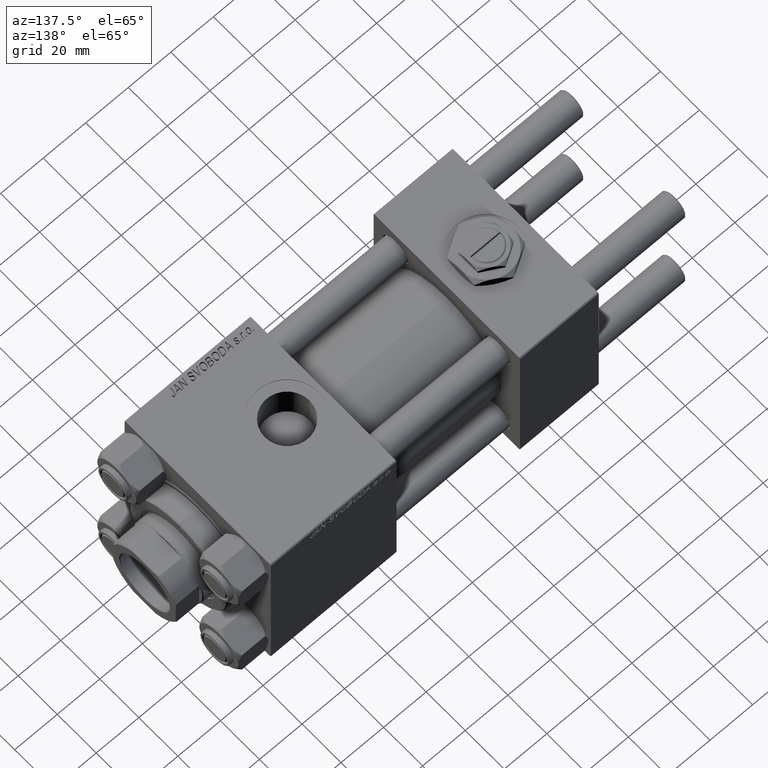
[diagram: clean part render]
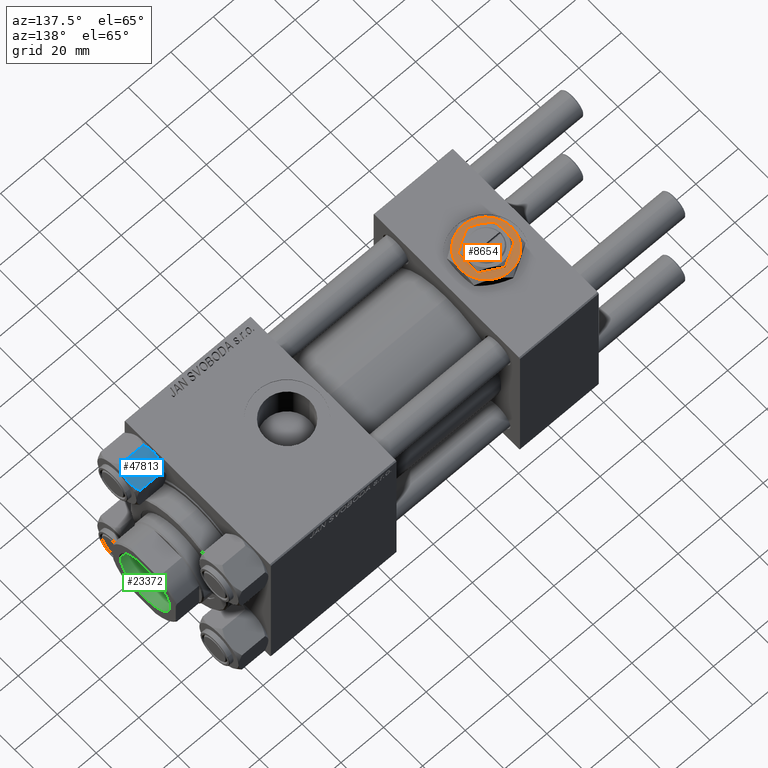
[diagram: same view with three faces highlighted in distinct colors, each labeled with its STEP entity id]
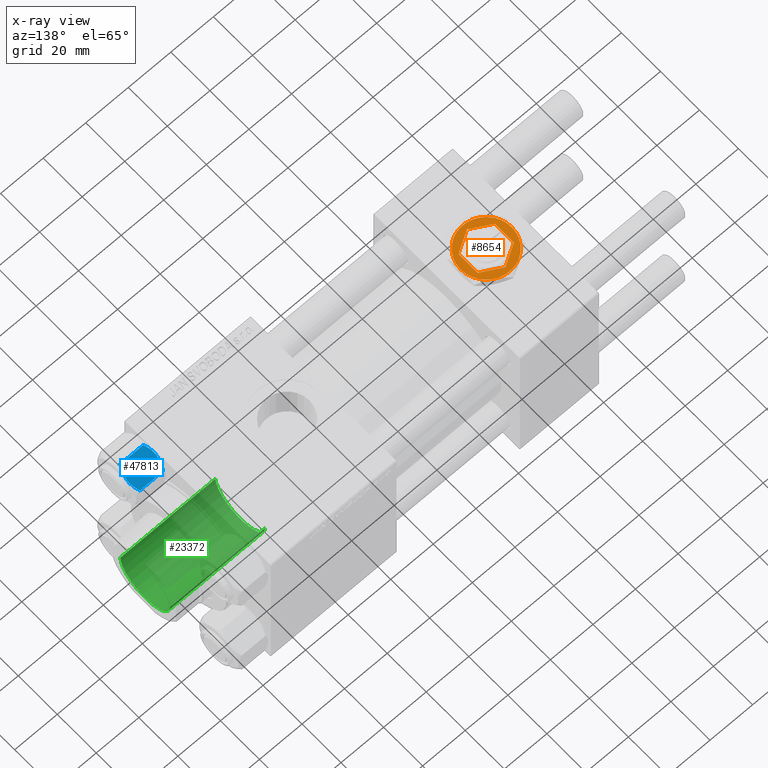
[diagram: x-ray of the same camera — body ghosted, the three highlighted faces saturated]
A machine part, auxiliary view with three faces highlighted in distinct colors.
The next image is the same camera in x-ray (body ghosted, the three faces saturated) — at least one of them is partly hidden behind the body in this view.
Their STEP definitions:

[orange] entity #8654 — the highlighted planar face has unit normal (0, 0, 1).
#578 = AXIS2_PLACEMENT_3D ( 'NONE', #30962, #7125, #14203 ) ;
#1507 = CARTESIAN_POINT ( 'NONE',  ( 0.000000000000000000, 0.000000000000000000, 4.299999999999999822 ) ) ;
#1743 = CARTESIAN_POINT ( 'NONE',  ( -2.644623992720612091E-15, -9.814954576223637872, 4.299999999999999822 ) ) ;
#1765 = DIRECTION ( 'NONE',  ( 1.000000000000000000, 0.000000000000000000, 0.000000000000000000 ) ) ;
#2331 = ORIENTED_EDGE ( 'NONE', *, *, #11339, .T. ) ;
#2369 = CARTESIAN_POINT ( 'NONE',  ( 8.499999999999996447, 4.907477288111821601, 4.299999999999999822 ) ) ;
#2487 = EDGE_CURVE ( 'NONE', #23795, #38289, #14748, .T. ) ;
#2777 = CARTESIAN_POINT ( 'NONE',  ( 0.000000000000000000, 0.000000000000000000, 4.299999999999999822 ) ) ;
#2883 = LINE ( 'NONE', #19116, #24716 ) ;
#3027 = FACE_BOUND ( 'NONE', #23070, .T. ) ;
#3139 = DIRECTION ( 'NONE',  ( 0.000000000000000000, 0.000000000000000000, 1.000000000000000000 ) ) ;
#3194 = CARTESIAN_POINT ( 'NONE',  ( 6.000000000000000888, 10.39230484541326582, 4.299999999999999822 ) ) ;
#4140 = EDGE_CURVE ( 'NONE', #27456, #24628, #9774, .T. ) ;
#4170 = ORIENTED_EDGE ( 'NONE', *, *, #38021, .F. ) ;
#5489 = CARTESIAN_POINT ( 'NONE',  ( 0.000000000000000000, 0.000000000000000000, 4.299999999999999822 ) ) ;
#5886 = CARTESIAN_POINT ( 'NONE',  ( -6.000000000000000000, -10.39230484541326582, 4.299999999999999822 ) ) ;
#5953 = DIRECTION ( 'NONE',  ( 0.000000000000000000, 0.000000000000000000, 1.000000000000000000 ) ) ;
#6041 = LINE ( 'NONE', #2369, #35227 ) ;
#6577 = ORIENTED_EDGE ( 'NONE', *, *, #7555, .T. ) ;
#6869 = CARTESIAN_POINT ( 'NONE',  ( -8.500000000000000000, 4.907477288111818048, 4.299999999999999822 ) ) ;
#7069 = CARTESIAN_POINT ( 'NONE',  ( 0.000000000000000000, 0.000000000000000000, 4.299999999999999822 ) ) ;
#7125 = DIRECTION ( 'NONE',  ( 0.000000000000000000, 0.000000000000000000, 1.000000000000000000 ) ) ;
#7167 = VECTOR ( 'NONE', #30768, 1000.000000000000000 ) ;
#7555 = EDGE_CURVE ( 'NONE', #38289, #17380, #18272, .T. ) ;
#8641 = VERTEX_POINT ( 'NONE', #17788 ) ;
#8654 = ADVANCED_FACE ( 'NONE', ( #50425, #3027 ), #31566, .T. ) ;
#9774 = CIRCLE ( 'NONE', #578, 12.00000000000000178 ) ;
#10568 = AXIS2_PLACEMENT_3D ( 'NONE', #5489, #49214, #24899 ) ;
#10683 = EDGE_CURVE ( 'NONE', #16304, #18826, #37400, .T. ) ;
#11122 = DIRECTION ( 'NONE',  ( -0.8660254037844385966, -0.5000000000000000000, 0.000000000000000000 ) ) ;
#11173 = DIRECTION ( 'NONE',  ( 1.000000000000000000, 0.000000000000000000, 0.000000000000000000 ) ) ;
#11339 = EDGE_CURVE ( 'NONE', #24628, #20233, #18384, .T. ) ;
#12543 = AXIS2_PLACEMENT_3D ( 'NONE', #7069, #3139, #19115 ) ;
#14203 = DIRECTION ( 'NONE',  ( 1.000000000000000000, 0.000000000000000000, 0.000000000000000000 ) ) ;
#14748 = CIRCLE ( 'NONE', #28970, 12.00000000000000178 ) ;
#15277 = ORIENTED_EDGE ( 'NONE', *, *, #39639, .T. ) ;
#16279 = ORIENTED_EDGE ( 'NONE', *, *, #19039, .F. ) ;
#16304 = VERTEX_POINT ( 'NONE', #33083 ) ;
#16826 = ORIENTED_EDGE ( 'NONE', *, *, #44126, .T. ) ;
#17380 = VERTEX_POINT ( 'NONE', #20676 ) ;
#17788 = CARTESIAN_POINT ( 'NONE',  ( 8.499999999999996447, 4.907477288111821601, 4.299999999999999822 ) ) ;
#17986 = EDGE_LOOP ( 'NONE', ( #16826, #20899, #6577, #15277, #32553, #2331 ) ) ;
#18272 = CIRCLE ( 'NONE', #47516, 12.00000000000000178 ) ;
#18274 = CIRCLE ( 'NONE', #39173, 12.00000000000000178 ) ;
#18384 = CIRCLE ( 'NONE', #12543, 12.00000000000000178 ) ;
#18826 = VERTEX_POINT ( 'NONE', #1743 ) ;
#19039 = EDGE_CURVE ( 'NONE', #18826, #30346, #48030, .T. ) ;
#19115 = DIRECTION ( 'NONE',  ( 1.000000000000000000, 0.000000000000000000, 0.000000000000000000 ) ) ;
#19116 = CARTESIAN_POINT ( 'NONE',  ( 8.500000000000000000, -4.907477288111819824, 4.299999999999999822 ) ) ;
#19499 = CARTESIAN_POINT ( 'NONE',  ( 0.000000000000000000, 9.814954576223637872, 4.299999999999999822 ) ) ;
#20233 = VERTEX_POINT ( 'NONE', #33063 ) ;
#20410 = ORIENTED_EDGE ( 'NONE', *, *, #10683, .F. ) ;
#20676 = CARTESIAN_POINT ( 'NONE',  ( -6.000000000000001776, 10.39230484541326405, 4.299999999999999822 ) ) ;
#20899 = ORIENTED_EDGE ( 'NONE', *, *, #2487, .T. ) ;
#21437 = CARTESIAN_POINT ( 'NONE',  ( -8.500000000000000000, -4.907477288111819824, 4.299999999999999822 ) ) ;
#22663 = LINE ( 'NONE', #23177, #7167 ) ;
#23070 = EDGE_LOOP ( 'NONE', ( #50350, #51126, #29437, #16279, #20410, #4170 ) ) ;
#23177 = CARTESIAN_POINT ( 'NONE',  ( -8.500000000000000000, 4.907477288111818048, 4.299999999999999822 ) ) ;
#23795 = VERTEX_POINT ( 'NONE', #51395 ) ;
#24628 = VERTEX_POINT ( 'NONE', #5886 ) ;
#24716 = VECTOR ( 'NONE', #39028, 1000.000000000000000 ) ;
#24899 = DIRECTION ( 'NONE',  ( 1.000000000000000000, 0.000000000000000000, 0.000000000000000000 ) ) ;
#25105 = DIRECTION ( 'NONE',  ( 0.8660254037844385966, -0.5000000000000001110, 0.000000000000000000 ) ) ;
#25825 = AXIS2_PLACEMENT_3D ( 'NONE', #2777, #39174, #27129 ) ;
#25835 = CARTESIAN_POINT ( 'NONE',  ( 0.000000000000000000, 0.000000000000000000, 4.299999999999999822 ) ) ;
#25967 = VECTOR ( 'NONE', #11122, 1000.000000000000227 ) ;
#26095 = DIRECTION ( 'NONE',  ( 0.000000000000000000, 0.000000000000000000, 1.000000000000000000 ) ) ;
#27129 = DIRECTION ( 'NONE',  ( 1.000000000000000000, 0.000000000000000000, -0.000000000000000000 ) ) ;
#27456 = VERTEX_POINT ( 'NONE', #49149 ) ;
#28417 = DIRECTION ( 'NONE',  ( 0.8660254037844388186, 0.4999999999999997224, 0.000000000000000000 ) ) ;
#28507 = CARTESIAN_POINT ( 'NONE',  ( 0.000000000000000000, 9.814954576223637872, 4.299999999999999822 ) ) ;
#28970 = AXIS2_PLACEMENT_3D ( 'NONE', #43116, #31082, #11173 ) ;
#29437 = ORIENTED_EDGE ( 'NONE', *, *, #32785, .F. ) ;
#30346 = VERTEX_POINT ( 'NONE', #37362 ) ;
#30768 = DIRECTION ( 'NONE',  ( 0.000000000000000000, -1.000000000000000000, 0.000000000000000000 ) ) ;
#30962 = CARTESIAN_POINT ( 'NONE',  ( 0.000000000000000000, 0.000000000000000000, 4.299999999999999822 ) ) ;
#31082 = DIRECTION ( 'NONE',  ( 0.000000000000000000, 0.000000000000000000, 1.000000000000000000 ) ) ;
#31566 = PLANE ( 'NONE',  #25825 ) ;
#32553 = ORIENTED_EDGE ( 'NONE', *, *, #4140, .T. ) ;
#32785 = EDGE_CURVE ( 'NONE', #30346, #8641, #2883, .T. ) ;
#33063 = CARTESIAN_POINT ( 'NONE',  ( 5.999999999999998224, -10.39230484541326760, 4.299999999999999822 ) ) ;
#33083 = CARTESIAN_POINT ( 'NONE',  ( -8.500000000000000000, -4.907477288111819824, 4.299999999999999822 ) ) ;
#33433 = DIRECTION ( 'NONE',  ( 1.000000000000000000, 0.000000000000000000, 0.000000000000000000 ) ) ;
#34326 = DIRECTION ( 'NONE',  ( -0.8660254037844387076, 0.4999999999999998890, 0.000000000000000000 ) ) ;
#35227 = VECTOR ( 'NONE', #34326, 1000.000000000000114 ) ;
#36045 = VECTOR ( 'NONE', #28417, 1000.000000000000114 ) ;
#36512 = CIRCLE ( 'NONE', #10568, 12.00000000000000178 ) ;
#36770 = VECTOR ( 'NONE', #25105, 1000.000000000000114 ) ;
#37362 = CARTESIAN_POINT ( 'NONE',  ( 8.500000000000000000, -4.907477288111819824, 4.299999999999999822 ) ) ;
#37400 = LINE ( 'NONE', #21437, #36770 ) ;
#38021 = EDGE_CURVE ( 'NONE', #49524, #16304, #22663, .T. ) ;
#38289 = VERTEX_POINT ( 'NONE', #3194 ) ;
#38638 = LINE ( 'NONE', #19499, #25967 ) ;
#39028 = DIRECTION ( 'NONE',  ( -3.534857879381550604E-16, 1.000000000000000000, 0.000000000000000000 ) ) ;
#39173 = AXIS2_PLACEMENT_3D ( 'NONE', #1507, #5953, #1765 ) ;
#39174 = DIRECTION ( 'NONE',  ( 0.000000000000000000, 0.000000000000000000, 1.000000000000000000 ) ) ;
#39639 = EDGE_CURVE ( 'NONE', #17380, #27456, #36512, .T. ) ;
#40408 = VERTEX_POINT ( 'NONE', #28507 ) ;
#43116 = CARTESIAN_POINT ( 'NONE',  ( 0.000000000000000000, 0.000000000000000000, 4.299999999999999822 ) ) ;
#44126 = EDGE_CURVE ( 'NONE', #20233, #23795, #18274, .T. ) ;
#47516 = AXIS2_PLACEMENT_3D ( 'NONE', #25835, #26095, #33433 ) ;
#48030 = LINE ( 'NONE', #48813, #36045 ) ;
#48813 = CARTESIAN_POINT ( 'NONE',  ( -2.644623992720612091E-15, -9.814954576223637872, 4.299999999999999822 ) ) ;
#49149 = CARTESIAN_POINT ( 'NONE',  ( -12.00000000000000178, 0.000000000000000000, 4.299999999999999822 ) ) ;
#49214 = DIRECTION ( 'NONE',  ( 0.000000000000000000, 0.000000000000000000, 1.000000000000000000 ) ) ;
#49300 = EDGE_CURVE ( 'NONE', #40408, #49524, #38638, .T. ) ;
#49524 = VERTEX_POINT ( 'NONE', #6869 ) ;
#50350 = ORIENTED_EDGE ( 'NONE', *, *, #49300, .F. ) ;
#50425 = FACE_OUTER_BOUND ( 'NONE', #17986, .T. ) ;
#51126 = ORIENTED_EDGE ( 'NONE', *, *, #51586, .F. ) ;
#51395 = CARTESIAN_POINT ( 'NONE',  ( 11.99999999999999645, 3.004629197474318063E-15, 4.299999999999999822 ) ) ;
#51586 = EDGE_CURVE ( 'NONE', #8641, #40408, #6041, .T. ) ;

[blue] entity #47813 — the highlighted planar face has unit normal (-0, -0.5, -0.866).
#1049 = CARTESIAN_POINT ( 'NONE',  ( 8.460569896449612770, 5.472293462311864864, -13.99999999999998934 ) ) ;
#1387 = CARTESIAN_POINT ( 'NONE',  ( 9.974696630283194310, 2.849749030213796885, -0.3002673809867452137 ) ) ;
#2475 = VERTEX_POINT ( 'NONE', #42866 ) ;
#2679 = B_SPLINE_CURVE_WITH_KNOTS ( 'NONE', 3,
 ( #8494, #24477, #44101, #16346, #27625, #23700 ),
 .UNSPECIFIED., .F., .F.,
 ( 4, 2, 4 ),
 ( 0.006022845781655580301, 0.009013049135303631554, 0.01200325248895168020 ),
 .UNSPECIFIED. ) ;
#4631 = CARTESIAN_POINT ( 'NONE',  ( 8.714999999999994529, 5.031607595987588333, -14.00000000000000000 ) ) ;
#4632 = EDGE_CURVE ( 'NONE', #31039, #2475, #5905, .T. ) ;
#4896 = CARTESIAN_POINT ( 'NONE',  ( 9.716999946243698005, 3.296092779912230153, -13.84547602999601068 ) ) ;
#4925 = CARTESIAN_POINT ( 'NONE',  ( 5.809999999999995168, 10.06321519197518377, -14.00000000000000000 ) ) ;
#4982 = CARTESIAN_POINT ( 'NONE',  ( 7.700834831386342394, 6.788193195293096949, -13.80960203119265017 ) ) ;
#5398 = CARTESIAN_POINT ( 'NONE',  ( 9.220295946303428636, 4.156409344131457573, -13.99999999999999822 ) ) ;
#5905 = LINE ( 'NONE', #37600, #38201 ) ;
#6259 = CARTESIAN_POINT ( 'NONE',  ( 8.714999999999994529, 5.031607595987588333, -14.00000000000000000 ) ) ;
#6918 = EDGE_CURVE ( 'NONE', #23397, #49770, #2679, .T. ) ;
#7540 = AXIS2_PLACEMENT_3D ( 'NONE', #4925, #28500, #12780 ) ;
#8494 = CARTESIAN_POINT ( 'NONE',  ( 8.714999999999994529, 5.031607595987588333, 0.000000000000000000 ) ) ;
#9502 = CARTESIAN_POINT ( 'NONE',  ( 8.969430103550385169, 4.590921729663316242, -5.293955920339376330E-15 ) ) ;
#9512 = CARTESIAN_POINT ( 'NONE',  ( 5.809999999999995168, 10.06321519197518377, -14.00000000000000000 ) ) ;
#9585 = CARTESIAN_POINT ( 'NONE',  ( 11.61999999999999922, 7.035126978385350964E-15, -12.44321519197517922 ) ) ;
#9759 = CARTESIAN_POINT ( 'NONE',  ( 11.61999999999999922, 7.247075248837498561E-15, -1.556784808024820999 ) ) ;
#11744 = VECTOR ( 'NONE', #13948, 1000.000000000000000 ) ;
#12123 = B_SPLINE_CURVE_WITH_KNOTS ( 'NONE', 3,
 ( #28819, #29079, #24895, #40870, #4982, #20968, #1049, #6259 ),
 .UNSPECIFIED., .F., .F.,
 ( 4, 2, 2, 4 ),
 ( 2.544312114902182352E-07, 0.003011550106433543827, 0.004517197944044569653, 0.006022845781655595046 ),
 .UNSPECIFIED. ) ;
#12780 = DIRECTION ( 'NONE',  ( 0.5000000000000002220, -0.8660254037844384856, 0.000000000000000000 ) ) ;
#13175 = CARTESIAN_POINT ( 'NONE',  ( 11.16445427487471775, 0.7890283410878045078, -1.101239082899540200 ) ) ;
#13687 = CARTESIAN_POINT ( 'NONE',  ( 8.714999999999994529, 5.031607595987588333, 0.000000000000000000 ) ) ;
#13948 = DIRECTION ( 'NONE',  ( -0.000000000000000000, -0.000000000000000000, 1.000000000000000000 ) ) ;
#13983 = EDGE_CURVE ( 'NONE', #32178, #31039, #19586, .T. ) ;
#16192 = PLANE ( 'NONE',  #7540 ) ;
#16205 = B_SPLINE_CURVE_WITH_KNOTS ( 'NONE', 3,
 ( #9759, #13175, #29163, #1387, #37784, #25231, #9502, #13687 ),
 .UNSPECIFIED., .F., .F.,
 ( 4, 2, 2, 4 ),
 ( 2.544312114899127210E-07, 0.003011550106433536454, 0.004517197944044559245, 0.006022845781655580301 ),
 .UNSPECIFIED. ) ;
#16346 = CARTESIAN_POINT ( 'NONE',  ( 6.733375043383494685, 8.463882702393844326, -0.7114554706434600417 ) ) ;
#16964 = CARTESIAN_POINT ( 'NONE',  ( 8.714999999999994529, 5.031607595987588333, 0.000000000000000000 ) ) ;
#17894 = LINE ( 'NONE', #9512, #11744 ) ;
#19586 = B_SPLINE_CURVE_WITH_KNOTS ( 'NONE', 3,
 ( #4631, #5398, #4896, #29250, #36318, #9585 ),
 .UNSPECIFIED., .F., .F.,
 ( 4, 2, 4 ),
 ( 0.006022845781655595046, 0.009013049135303638493, 0.01200325248895168194 ),
 .UNSPECIFIED. ) ;
#19980 = VERTEX_POINT ( 'NONE', #20828 ) ;
#20828 = CARTESIAN_POINT ( 'NONE',  ( 5.809999999999994280, 10.06321519197518377, -12.44321519197517389 ) ) ;
#20968 = CARTESIAN_POINT ( 'NONE',  ( 8.202333004087895674, 5.919572880271055659, -13.96005881939308502 ) ) ;
#21815 = ORIENTED_EDGE ( 'NONE', *, *, #50312, .T. ) ;
#23397 = VERTEX_POINT ( 'NONE', #16964 ) ;
#23700 = CARTESIAN_POINT ( 'NONE',  ( 5.809999999999995168, 10.06321519197518377, -1.556784808024826106 ) ) ;
#24477 = CARTESIAN_POINT ( 'NONE',  ( 8.209704053696574633, 5.906805847843728863, -5.031375706690544014E-15 ) ) ;
#24895 = CARTESIAN_POINT ( 'NONE',  ( 6.731401448974984270, 8.467301068182921497, -13.28585617404752384 ) ) ;
#25175 = CARTESIAN_POINT ( 'NONE',  ( 5.809999999999995168, 10.06321519197518377, -1.556784808024826106 ) ) ;
#25231 = CARTESIAN_POINT ( 'NONE',  ( 9.227666995912100489, 4.143642311704127223, -0.03994118060691630862 ) ) ;
#27152 = EDGE_CURVE ( 'NONE', #19980, #32178, #12123, .T. ) ;
#27231 = CARTESIAN_POINT ( 'NONE',  ( 8.714999999999994529, 5.031607595987588333, -14.00000000000000000 ) ) ;
#27625 = CARTESIAN_POINT ( 'NONE',  ( 6.265018354709772197, 9.275100283241449972, -1.101766453314962924 ) ) ;
#28500 = DIRECTION ( 'NONE',  ( -0.8660254037844385966, -0.5000000000000003331, 0.000000000000000000 ) ) ;
#28819 = CARTESIAN_POINT ( 'NONE',  ( 5.809999999999994280, 10.06321519197518377, -12.44321519197517389 ) ) ;
#29072 = ORIENTED_EDGE ( 'NONE', *, *, #6918, .F. ) ;
#29079 = CARTESIAN_POINT ( 'NONE',  ( 6.265545725125281074, 9.274186850887387479, -12.89876091710045891 ) ) ;
#29163 = CARTESIAN_POINT ( 'NONE',  ( 10.69859855102500923, 1.595914123792269601, -0.7141438259524722776 ) ) ;
#29250 = CARTESIAN_POINT ( 'NONE',  ( 10.69662495661650148, 1.599332489581338113, -13.28854452935654074 ) ) ;
#29766 = EDGE_LOOP ( 'NONE', ( #37191, #21815, #29072, #46498, #38392, #48065 ) ) ;
#31039 = VERTEX_POINT ( 'NONE', #33247 ) ;
#31595 = EDGE_CURVE ( 'NONE', #2475, #23397, #16205, .T. ) ;
#32178 = VERTEX_POINT ( 'NONE', #27231 ) ;
#33247 = CARTESIAN_POINT ( 'NONE',  ( 11.61999999999999922, 7.035126978385350964E-15, -12.44321519197517922 ) ) ;
#36318 = CARTESIAN_POINT ( 'NONE',  ( 11.16498164529021864, 0.7881149087337363524, -12.89823354668503974 ) ) ;
#37133 = FACE_OUTER_BOUND ( 'NONE', #29766, .T. ) ;
#37191 = ORIENTED_EDGE ( 'NONE', *, *, #27152, .F. ) ;
#37600 = CARTESIAN_POINT ( 'NONE',  ( 11.61999999999999922, 7.017202701192663836E-15, -14.00000000000000000 ) ) ;
#37784 = CARTESIAN_POINT ( 'NONE',  ( 9.729165168613654657, 3.275021996682086378, -0.1903979688073500487 ) ) ;
#38201 = VECTOR ( 'NONE', #45188, 1000.000000000000000 ) ;
#38392 = ORIENTED_EDGE ( 'NONE', *, *, #4632, .F. ) ;
#40870 = CARTESIAN_POINT ( 'NONE',  ( 7.455303369716803630, 7.213466161761386886, -13.69973261901325223 ) ) ;
#42866 = CARTESIAN_POINT ( 'NONE',  ( 11.61999999999999922, 7.247075248837498561E-15, -1.556784808024820999 ) ) ;
#44101 = CARTESIAN_POINT ( 'NONE',  ( 7.713000053756304375, 6.767122412062953174, -0.1545239700039927888 ) ) ;
#45188 = DIRECTION ( 'NONE',  ( -0.000000000000000000, -0.000000000000000000, 1.000000000000000000 ) ) ;
#46498 = ORIENTED_EDGE ( 'NONE', *, *, #31595, .F. ) ;
#47813 = ADVANCED_FACE ( 'NONE', ( #37133 ), #16192, .F. ) ;
#48065 = ORIENTED_EDGE ( 'NONE', *, *, #13983, .F. ) ;
#49770 = VERTEX_POINT ( 'NONE', #25175 ) ;
#50312 = EDGE_CURVE ( 'NONE', #19980, #49770, #17894, .T. ) ;

[green] entity #23372 — the highlighted cylindrical surface (partial cylindrical patch) has radius 12.75 mm, axis along (1, 0, -0).
#312 = CARTESIAN_POINT ( 'NONE',  ( 12.74999999999999112, 0.000000000000000000, 141.7000000000000171 ) ) ;
#2952 = DIRECTION ( 'NONE',  ( -0.000000000000000000, -0.000000000000000000, 1.000000000000000000 ) ) ;
#4960 = AXIS2_PLACEMENT_3D ( 'NONE', #14902, #11236, #31406 ) ;
#9622 = EDGE_CURVE ( 'NONE', #34033, #32992, #21681, .T. ) ;
#11236 = DIRECTION ( 'NONE',  ( 0.000000000000000000, 0.000000000000000000, 1.000000000000000000 ) ) ;
#13234 = DIRECTION ( 'NONE',  ( -0.000000000000000000, -0.000000000000000000, 1.000000000000000000 ) ) ;
#13574 = CARTESIAN_POINT ( 'NONE',  ( -12.74999999999999112, 1.561424668912874125E-15, 141.7000000000000171 ) ) ;
#14902 = CARTESIAN_POINT ( 'NONE',  ( 0.000000000000000000, 0.000000000000000000, 141.7000000000000171 ) ) ;
#15355 = VECTOR ( 'NONE', #2952, 1000.000000000000000 ) ;
#18372 = EDGE_LOOP ( 'NONE', ( #18993, #45185, #19264, #30848 ) ) ;
#18993 = ORIENTED_EDGE ( 'NONE', *, *, #41218, .F. ) ;
#19079 = DIRECTION ( 'NONE',  ( 1.000000000000000000, 0.000000000000000000, 0.000000000000000000 ) ) ;
#19264 = ORIENTED_EDGE ( 'NONE', *, *, #29876, .T. ) ;
#21681 = CIRCLE ( 'NONE', #4960, 12.74999999999999112 ) ;
#22873 = CARTESIAN_POINT ( 'NONE',  ( 12.74999999999999112, 0.000000000000000000, 142.0000000000000284 ) ) ;
#23372 = ADVANCED_FACE ( 'NONE', ( #31387 ), #38992, .F. ) ;
#25719 = VECTOR ( 'NONE', #26524, 1000.000000000000000 ) ;
#26524 = DIRECTION ( 'NONE',  ( -0.000000000000000000, -0.000000000000000000, 1.000000000000000000 ) ) ;
#26630 = CARTESIAN_POINT ( 'NONE',  ( -12.74999999999998934, 1.561424668912873928E-15, 97.00000000000001421 ) ) ;
#27465 = DIRECTION ( 'NONE',  ( -0.000000000000000000, -0.000000000000000000, 1.000000000000000000 ) ) ;
#29350 = AXIS2_PLACEMENT_3D ( 'NONE', #47344, #27465, #19079 ) ;
#29876 = EDGE_CURVE ( 'NONE', #50417, #34033, #38324, .T. ) ;
#30183 = LINE ( 'NONE', #42746, #25719 ) ;
#30848 = ORIENTED_EDGE ( 'NONE', *, *, #9622, .T. ) ;
#30973 = CARTESIAN_POINT ( 'NONE',  ( 12.74999999999998934, 0.000000000000000000, 97.00000000000001421 ) ) ;
#31387 = FACE_OUTER_BOUND ( 'NONE', #18372, .T. ) ;
#31406 = DIRECTION ( 'NONE',  ( 1.000000000000000000, 0.000000000000000000, 0.000000000000000000 ) ) ;
#32992 = VERTEX_POINT ( 'NONE', #13574 ) ;
#33894 = AXIS2_PLACEMENT_3D ( 'NONE', #41516, #13234, #45177 ) ;
#34033 = VERTEX_POINT ( 'NONE', #312 ) ;
#36861 = VERTEX_POINT ( 'NONE', #26630 ) ;
#37189 = EDGE_CURVE ( 'NONE', #50417, #36861, #40599, .T. ) ;
#38324 = LINE ( 'NONE', #22873, #15355 ) ;
#38992 = CYLINDRICAL_SURFACE ( 'NONE', #29350, 12.74999999999999112 ) ;
#40599 = CIRCLE ( 'NONE', #33894, 12.74999999999998934 ) ;
#41218 = EDGE_CURVE ( 'NONE', #36861, #32992, #30183, .T. ) ;
#41516 = CARTESIAN_POINT ( 'NONE',  ( 0.000000000000000000, 0.000000000000000000, 97.00000000000001421 ) ) ;
#42746 = CARTESIAN_POINT ( 'NONE',  ( -12.74999999999999112, 1.561424668912874125E-15, 142.0000000000000284 ) ) ;
#45177 = DIRECTION ( 'NONE',  ( 1.000000000000000000, 0.000000000000000000, 0.000000000000000000 ) ) ;
#45185 = ORIENTED_EDGE ( 'NONE', *, *, #37189, .F. ) ;
#47344 = CARTESIAN_POINT ( 'NONE',  ( 0.000000000000000000, 0.000000000000000000, 142.0000000000000284 ) ) ;
#50417 = VERTEX_POINT ( 'NONE', #30973 ) ;